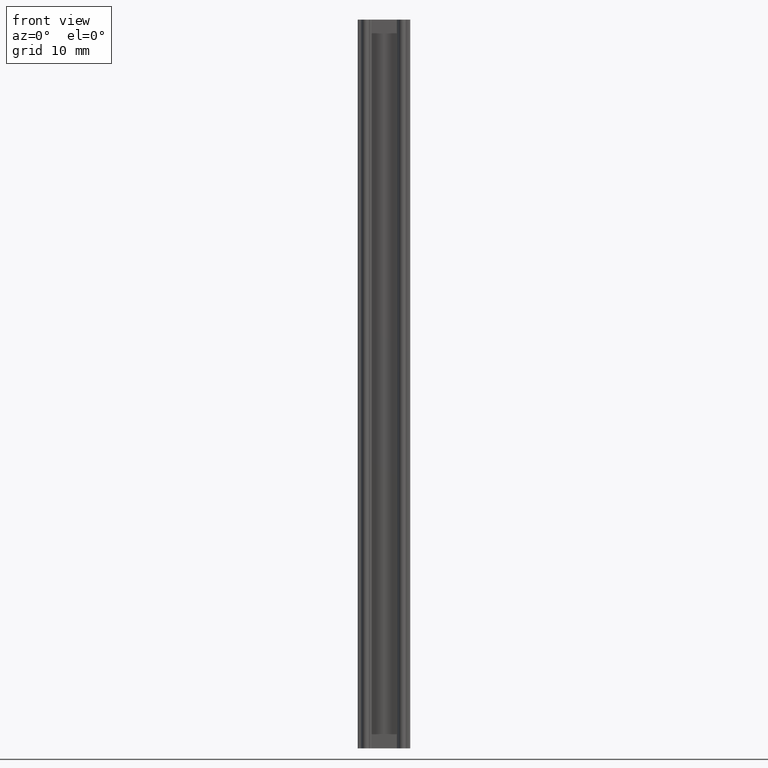
[diagram: clean part render]
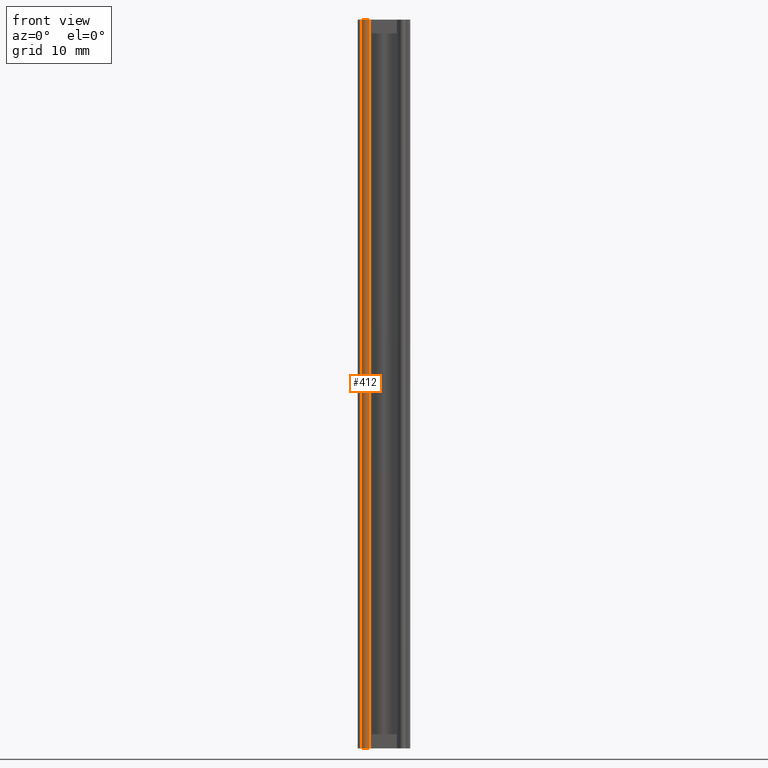
[diagram: same view with one face highlighted and labeled with its STEP entity id]
A machine part, front view. The second image highlights one B-rep face of the part: STEP entity #412.
In plain terms, the highlighted cylindrical surface (edge-blend (fillet) strip) has radius 0.5 mm, axis along (0, 0, 1).
Its self-contained STEP definition (entity closure, byte-faithful):
#42=FACE_OUTER_BOUND('',#64,.T.);
#64=EDGE_LOOP('',(#351,#352,#353,#354));
#76=LINE('',#660,#108);
#97=LINE('',#735,#129);
#108=VECTOR('',#526,10.);
#129=VECTOR('',#607,10.);
#145=CIRCLE('',#460,0.500000000000001);
#158=CIRCLE('',#482,0.500000000000001);
#173=VERTEX_POINT('',#657);
#174=VERTEX_POINT('',#659);
#187=VERTEX_POINT('',#694);
#198=VERTEX_POINT('',#734);
#217=EDGE_CURVE('',#173,#174,#76,.T.);
#234=EDGE_CURVE('',#174,#187,#145,.T.);
#255=EDGE_CURVE('',#198,#187,#97,.T.);
#257=EDGE_CURVE('',#198,#173,#158,.T.);
#351=ORIENTED_EDGE('',*,*,#257,.F.);
#352=ORIENTED_EDGE('',*,*,#255,.T.);
#353=ORIENTED_EDGE('',*,*,#234,.F.);
#354=ORIENTED_EDGE('',*,*,#217,.F.);
#392=CYLINDRICAL_SURFACE('',#481,0.500000000000001);
#412=ADVANCED_FACE('',(#42),#392,.T.);
#460=AXIS2_PLACEMENT_3D('',#695,#558,#559);
#481=AXIS2_PLACEMENT_3D('',#737,#610,#611);
#482=AXIS2_PLACEMENT_3D('',#738,#612,#613);
#526=DIRECTION('',(0.,0.,1.));
#558=DIRECTION('center_axis',(0.,0.,1.));
#559=DIRECTION('ref_axis',(0.971241812112911,0.238095238095238,0.));
#607=DIRECTION('',(0.,0.,1.));
#610=DIRECTION('center_axis',(0.,0.,1.));
#611=DIRECTION('ref_axis',(0.971241812112911,0.238095238095238,0.));
#612=DIRECTION('center_axis',(0.,0.,-1.));
#613=DIRECTION('ref_axis',(0.971241812112911,0.238095238095238,0.));
#657=CARTESIAN_POINT('',(-3.0044443223678,-1.61904761904762,0.));
#659=CARTESIAN_POINT('',(-3.0044443223678,-1.61904761904762,100.));
#660=CARTESIAN_POINT('',(-3.0044443223678,-1.61904761904762,0.));
#694=CARTESIAN_POINT('',(-2.03320251025489,-1.38095238095238,100.));
#695=CARTESIAN_POINT('Origin',(-2.51882341631134,-1.5,100.));
#734=CARTESIAN_POINT('',(-2.03320251025489,-1.38095238095238,0.));
#735=CARTESIAN_POINT('',(-2.03320251025489,-1.38095238095238,0.));
#737=CARTESIAN_POINT('Origin',(-2.51882341631134,-1.5,0.));
#738=CARTESIAN_POINT('Origin',(-2.51882341631134,-1.5,0.));